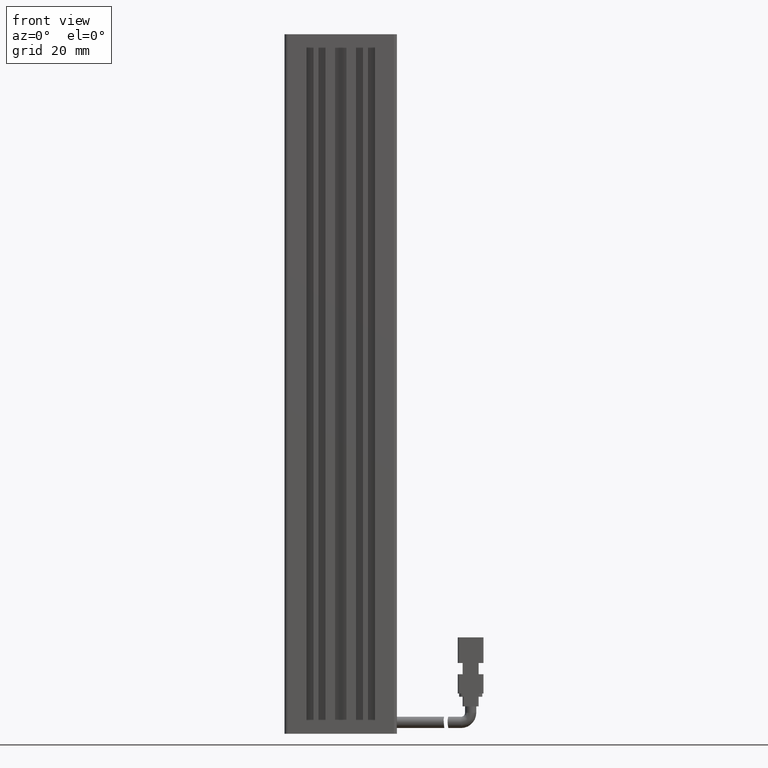
[diagram: clean part render]
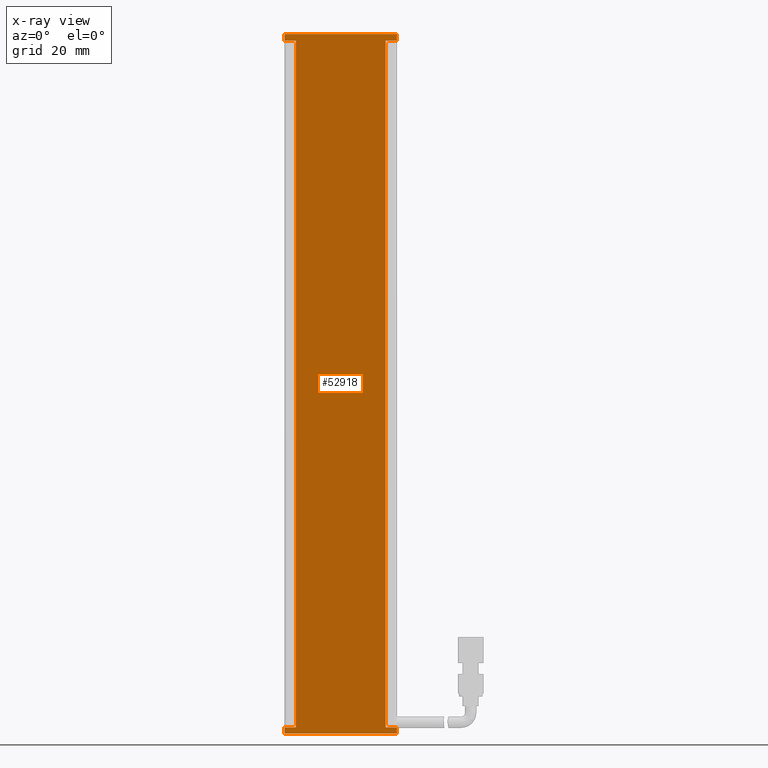
[diagram: x-ray — body ghosted, one internal face saturated and labeled with its STEP entity id]
A machine part, front view, then the same camera in x-ray: the body is ghosted and one INTERNAL B-rep face — a face not visible from any outside direction — is saturated and labeled: STEP entity #52918.
In plain terms, the highlighted planar face has unit normal (0, -1, 0).
Its self-contained STEP definition (entity closure, byte-faithful):
#481 = DIRECTION ( 'NONE',  ( 0.0000000000000000000, -0.0000000000000000000, -1.000000000000000000 ) ) ;
#713 = VECTOR ( 'NONE', #81553, 1000.000000000000000 ) ;
#1003 = VECTOR ( 'NONE', #23083, 1000.000000000000000 ) ;
#2682 = CARTESIAN_POINT ( 'NONE',  ( 40.92537974683542500, 19.49073232304837000, -224.0000000000000000 ) ) ;
#5080 = PLANE ( 'NONE',  #41129 ) ;
#5757 = CARTESIAN_POINT ( 'NONE',  ( 23.42537974683542100, 19.49073232304836600, -8.000000000000007100 ) ) ;
#6808 = EDGE_CURVE ( 'NONE', #32859, #44769, #82929, .T. ) ;
#8104 = CARTESIAN_POINT ( 'NONE',  ( 26.92537974683542100, 19.49073232304836600, -6.000000000000005300 ) ) ;
#10157 = LINE ( 'NONE', #38840, #20059 ) ;
#10575 = VECTOR ( 'NONE', #30856, 1000.000000000000000 ) ;
#10812 = CARTESIAN_POINT ( 'NONE',  ( 23.42537974683542100, 19.49073232304836600, -6.000000000000005300 ) ) ;
#11565 = FACE_OUTER_BOUND ( 'NONE', #14851, .T. ) ;
#12138 = DIRECTION ( 'NONE',  ( 1.239088197126290600E-016, -1.000000000000000000, 0.0000000000000000000 ) ) ;
#12168 = LINE ( 'NONE', #54970, #29671 ) ;
#12178 = EDGE_CURVE ( 'NONE', #67047, #56326, #10157, .T. ) ;
#12522 = VERTEX_POINT ( 'NONE', #77582 ) ;
#13144 = VERTEX_POINT ( 'NONE', #32192 ) ;
#14185 = ORIENTED_EDGE ( 'NONE', *, *, #70643, .F. ) ;
#14851 = EDGE_LOOP ( 'NONE', ( #59409, #57655, #68396, #35878, #25049, #17093, #77260, #14185, #50106, #65568, #22671, #67220 ) ) ;
#15689 = CARTESIAN_POINT ( 'NONE',  ( 58.42537974683542500, 19.49073232304837000, -6.000000000000005300 ) ) ;
#16890 = CARTESIAN_POINT ( 'NONE',  ( 58.42537974683542500, 19.49073232304837000, -221.9999999999999700 ) ) ;
#17093 = ORIENTED_EDGE ( 'NONE', *, *, #86603, .F. ) ;
#17420 = DIRECTION ( 'NONE',  ( -1.000000000000000000, -1.239088197126290600E-016, -0.0000000000000000000 ) ) ;
#19262 = VERTEX_POINT ( 'NONE', #31973 ) ;
#20059 = VECTOR ( 'NONE', #17420, 1000.000000000000000 ) ;
#20115 = VERTEX_POINT ( 'NONE', #77904 ) ;
#20565 = EDGE_CURVE ( 'NONE', #13144, #29805, #35746, .T. ) ;
#20670 = VECTOR ( 'NONE', #89128, 1000.000000000000000 ) ;
#22478 = CARTESIAN_POINT ( 'NONE',  ( 23.42537974683542500, 19.49073232304836600, -6.000000000000005300 ) ) ;
#22671 = ORIENTED_EDGE ( 'NONE', *, *, #12178, .F. ) ;
#23083 = DIRECTION ( 'NONE',  ( -0.0000000000000000000, 0.0000000000000000000, 1.000000000000000000 ) ) ;
#23400 = CARTESIAN_POINT ( 'NONE',  ( 58.42537974683542500, 19.49073232304837000, -224.0000000000000000 ) ) ;
#25049 = ORIENTED_EDGE ( 'NONE', *, *, #39931, .F. ) ;
#27095 = CARTESIAN_POINT ( 'NONE',  ( 40.92537974683542500, 19.49073232304837000, -8.000000000000007100 ) ) ;
#29361 = VECTOR ( 'NONE', #33141, 1000.000000000000000 ) ;
#29671 = VECTOR ( 'NONE', #40041, 1000.000000000000000 ) ;
#29805 = VERTEX_POINT ( 'NONE', #39478 ) ;
#30856 = DIRECTION ( 'NONE',  ( 1.000000000000000000, 1.239088197126290600E-016, 0.0000000000000000000 ) ) ;
#31685 = DIRECTION ( 'NONE',  ( 0.0000000000000000000, -0.0000000000000000000, -1.000000000000000000 ) ) ;
#31973 = CARTESIAN_POINT ( 'NONE',  ( 23.42537974683542100, 19.49073232304836600, -224.0000000000000000 ) ) ;
#32192 = CARTESIAN_POINT ( 'NONE',  ( 58.42537974683542500, 19.49073232304837000, -8.000000000000007100 ) ) ;
#32789 = VECTOR ( 'NONE', #84182, 1000.000000000000000 ) ;
#32859 = VERTEX_POINT ( 'NONE', #47196 ) ;
#33141 = DIRECTION ( 'NONE',  ( 1.000000000000000000, 1.239088197126290600E-016, 0.0000000000000000000 ) ) ;
#34182 = CARTESIAN_POINT ( 'NONE',  ( 40.92537974683542500, 19.49073232304837000, -6.000000000000005300 ) ) ;
#35746 = LINE ( 'NONE', #42598, #38996 ) ;
#35878 = ORIENTED_EDGE ( 'NONE', *, *, #20565, .F. ) ;
#38840 = CARTESIAN_POINT ( 'NONE',  ( 40.92537974683542500, 19.49073232304837000, -222.0000000000000000 ) ) ;
#38996 = VECTOR ( 'NONE', #42290, 1000.000000000000000 ) ;
#39176 = VECTOR ( 'NONE', #31685, 1000.000000000000000 ) ;
#39478 = CARTESIAN_POINT ( 'NONE',  ( 58.42537974683542500, 19.49073232304837000, -6.000000000000005300 ) ) ;
#39931 = EDGE_CURVE ( 'NONE', #20115, #13144, #85095, .T. ) ;
#40041 = DIRECTION ( 'NONE',  ( -1.000000000000000000, -1.239088197126290600E-016, -0.0000000000000000000 ) ) ;
#40776 = CARTESIAN_POINT ( 'NONE',  ( 54.92537974683542500, 19.49073232304837000, -222.0000000000000000 ) ) ;
#41129 = AXIS2_PLACEMENT_3D ( 'NONE', #34182, #12138, #61030 ) ;
#41799 = EDGE_CURVE ( 'NONE', #64697, #50222, #67577, .T. ) ;
#42147 = VERTEX_POINT ( 'NONE', #23400 ) ;
#42290 = DIRECTION ( 'NONE',  ( -0.0000000000000000000, 0.0000000000000000000, 1.000000000000000000 ) ) ;
#42598 = CARTESIAN_POINT ( 'NONE',  ( 58.42537974683542500, 19.49073232304837000, -6.000000000000005300 ) ) ;
#43269 = EDGE_CURVE ( 'NONE', #29805, #32859, #12168, .T. ) ;
#44769 = VERTEX_POINT ( 'NONE', #5757 ) ;
#47020 = CARTESIAN_POINT ( 'NONE',  ( 40.92537974683542500, 19.49073232304837000, -222.0000000000000000 ) ) ;
#47160 = EDGE_CURVE ( 'NONE', #56326, #19262, #86279, .T. ) ;
#47196 = CARTESIAN_POINT ( 'NONE',  ( 23.42537974683542100, 19.49073232304836600, -6.000000000000005300 ) ) ;
#49375 = CARTESIAN_POINT ( 'NONE',  ( 54.92537974683542500, 19.49073232304837000, -6.000000000000005300 ) ) ;
#50106 = ORIENTED_EDGE ( 'NONE', *, *, #67554, .F. ) ;
#50222 = VERTEX_POINT ( 'NONE', #40776 ) ;
#52484 = VECTOR ( 'NONE', #64307, 1000.000000000000000 ) ;
#52918 = ADVANCED_FACE ( 'NONE', ( #11565 ), #5080, .F. ) ;
#54970 = CARTESIAN_POINT ( 'NONE',  ( 40.92537974683542500, 19.49073232304837000, -6.000000000000005300 ) ) ;
#56326 = VERTEX_POINT ( 'NONE', #63888 ) ;
#57655 = ORIENTED_EDGE ( 'NONE', *, *, #6808, .F. ) ;
#59409 = ORIENTED_EDGE ( 'NONE', *, *, #62784, .F. ) ;
#61030 = DIRECTION ( 'NONE',  ( 1.000000000000000000, 1.239088197126290600E-016, 0.0000000000000000000 ) ) ;
#62784 = EDGE_CURVE ( 'NONE', #44769, #12522, #89462, .T. ) ;
#63888 = CARTESIAN_POINT ( 'NONE',  ( 23.42537974683542100, 19.49073232304836600, -222.0000000000000000 ) ) ;
#64307 = DIRECTION ( 'NONE',  ( 0.0000000000000000000, -0.0000000000000000000, -1.000000000000000000 ) ) ;
#64445 = LINE ( 'NONE', #15689, #1003 ) ;
#64697 = VERTEX_POINT ( 'NONE', #16890 ) ;
#65568 = ORIENTED_EDGE ( 'NONE', *, *, #47160, .F. ) ;
#67047 = VERTEX_POINT ( 'NONE', #81285 ) ;
#67220 = ORIENTED_EDGE ( 'NONE', *, *, #86049, .F. ) ;
#67554 = EDGE_CURVE ( 'NONE', #19262, #42147, #90425, .T. ) ;
#67577 = LINE ( 'NONE', #47020, #713 ) ;
#68396 = ORIENTED_EDGE ( 'NONE', *, *, #43269, .F. ) ;
#70643 = EDGE_CURVE ( 'NONE', #42147, #64697, #64445, .T. ) ;
#72639 = LINE ( 'NONE', #8104, #78037 ) ;
#77260 = ORIENTED_EDGE ( 'NONE', *, *, #41799, .F. ) ;
#77582 = CARTESIAN_POINT ( 'NONE',  ( 26.92537974683542100, 19.49073232304836600, -8.000000000000007100 ) ) ;
#77904 = CARTESIAN_POINT ( 'NONE',  ( 54.92537974683542500, 19.49073232304837000, -8.000000000000007100 ) ) ;
#78037 = VECTOR ( 'NONE', #481, 1000.000000000000000 ) ;
#80879 = LINE ( 'NONE', #49375, #32789 ) ;
#81285 = CARTESIAN_POINT ( 'NONE',  ( 26.92537974683542100, 19.49073232304836600, -222.0000000000000000 ) ) ;
#81553 = DIRECTION ( 'NONE',  ( -1.000000000000000000, -1.239088197126290600E-016, -0.0000000000000000000 ) ) ;
#82929 = LINE ( 'NONE', #10812, #39176 ) ;
#84182 = DIRECTION ( 'NONE',  ( -0.0000000000000000000, 0.0000000000000000000, 1.000000000000000000 ) ) ;
#85095 = LINE ( 'NONE', #90217, #29361 ) ;
#86049 = EDGE_CURVE ( 'NONE', #12522, #67047, #72639, .T. ) ;
#86279 = LINE ( 'NONE', #22478, #52484 ) ;
#86603 = EDGE_CURVE ( 'NONE', #50222, #20115, #80879, .T. ) ;
#89128 = DIRECTION ( 'NONE',  ( 1.000000000000000000, 1.239088197126290600E-016, 0.0000000000000000000 ) ) ;
#89462 = LINE ( 'NONE', #27095, #20670 ) ;
#90217 = CARTESIAN_POINT ( 'NONE',  ( 40.92537974683542500, 19.49073232304837000, -8.000000000000007100 ) ) ;
#90425 = LINE ( 'NONE', #2682, #10575 ) ;